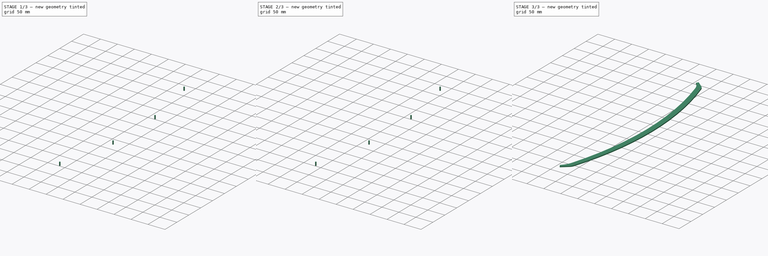
[diagram: build sequence overview — one tinted view per stage of 3, left to right]
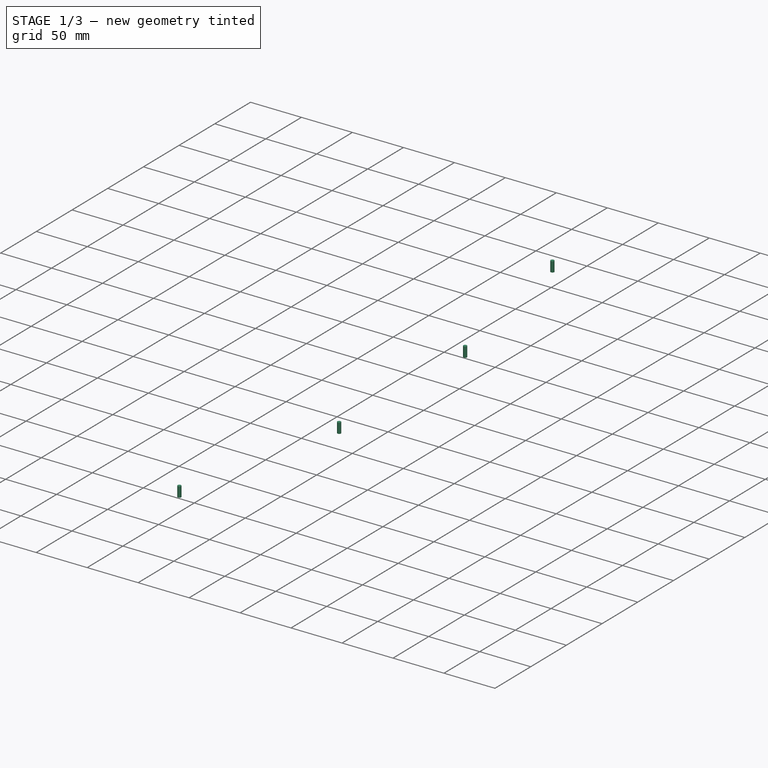
[diagram: stage 1 of 3 — iso view after this stage's code; geometry added in this stage tinted green]
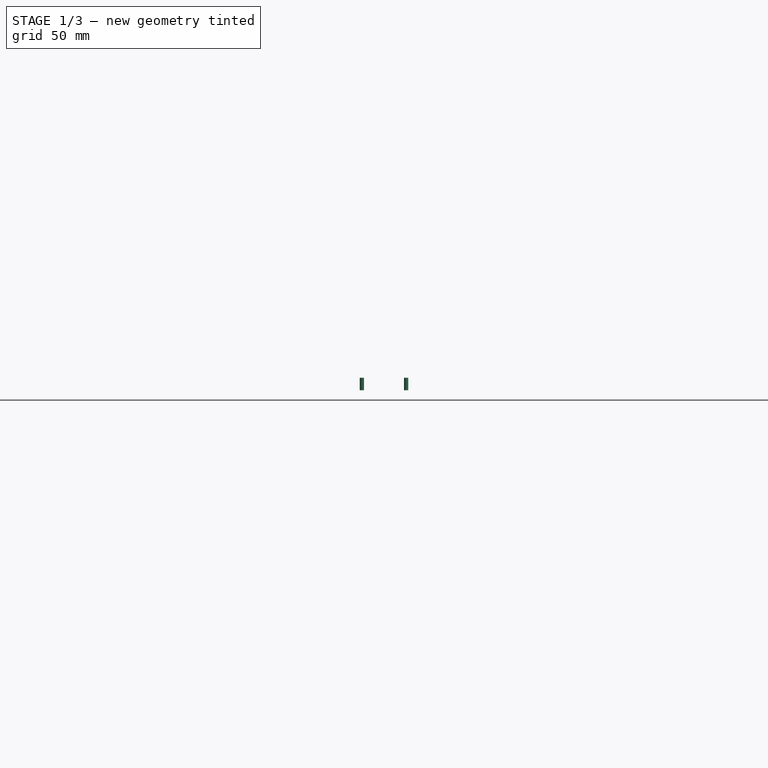
[diagram: stage 1 of 3 — front view after this stage's code; geometry added in this stage tinted green]
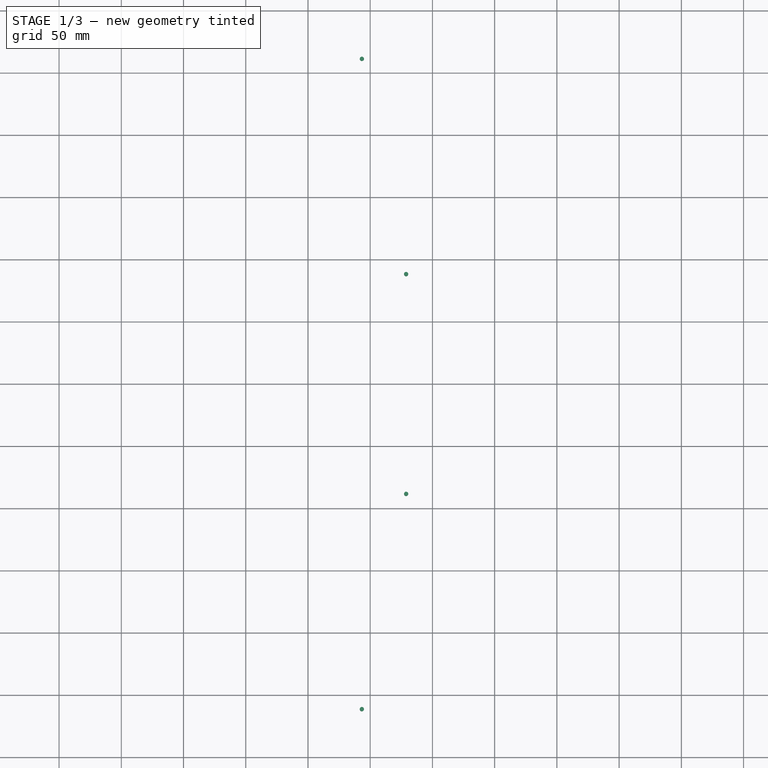
[diagram: stage 1 of 3 — top view after this stage's code; geometry added in this stage tinted green]
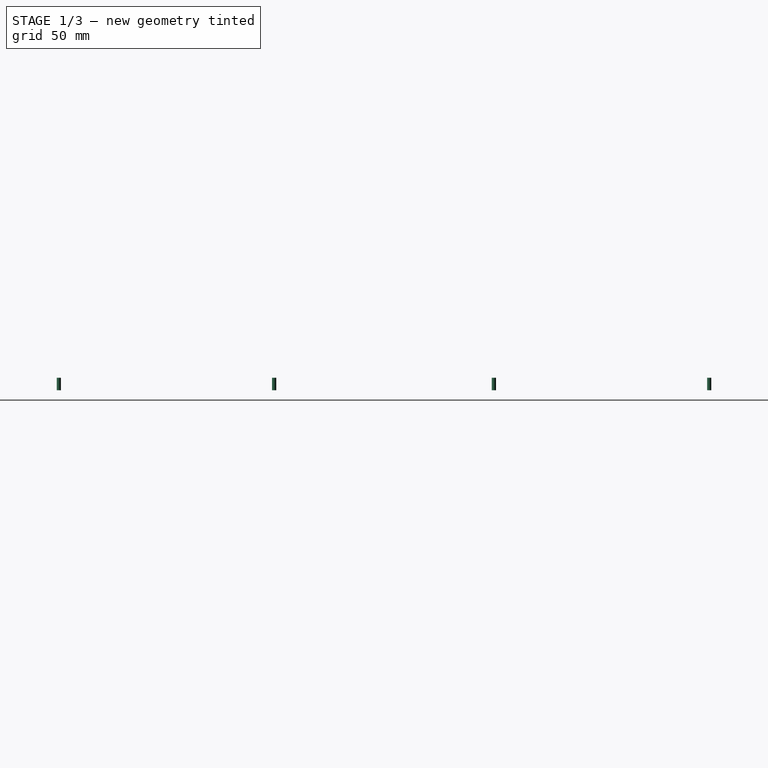
[diagram: stage 1 of 3 — right view after this stage's code; geometry added in this stage tinted green]
FCSTD DOCUMENT  (FreeCAD 1.1R38827 (Git))
Label: composit_stand3_sink_hand_model
License: All rights reserved
LicenseURL: http://en.wikipedia.org/wiki/All_rights_reserved
objects: Part::FeaturePython×4, PartDesign::SubShapeBinder×3, Sketcher::SketchObject×2, PartDesign::Body×2, Part::Feature×2, Part::Mirroring×1, PartDesign::Pad×1, Part::Cylinder×1, App::Link×1, Part::MultiFuse×1, PartDesign::Boolean×1, PartDesign::CoordinateSystem×1
note: 24 computed .brp shape members not serialized (recipe doc carries the construction recipe); baked Part::Feature solids carry a one-line shape summary decoded from their .brp
EXTERNAL_REF file=composit_stand3_sink_hand_main.FCStd obj=Sketch
EXTERNAL_REF file=composit_stand3_sink_hand_main.FCStd obj=Join

FEATURE [Part::Cylinder] Cylinder
  Angle = 360
  AttacherType = Attacher::AttachEngine3D
  FirstAngle = 0
  Height = 10
  Radius = 1.7
  SecondAngle = 0
FEATURE [PartDesign::Body] Body001
  AllowCompound = false
  Origin = -> Origin001
FEATURE [App::Link] Link001  label="sink_hand_holes"
  LinkedObject = -> <external composit_stand3_sink_hand_main.FCStd>#Join
FEATURE [Part::FeaturePython] Mirror  label="Mirror of sink_hand_holes"  # WARN: FeaturePython — macro-defined, semantics opaque (R4)
  ExposePlacement = false
  FlipX = false
  FlipY = true
  FlipZ = false
  MarkerShape = 1
  MarkerSize = 0
  NumElements = 4
  Object = -> Link001
  ObjectTraversal = 0
  Type = lattice2Mirror.LatticeMirror
  isLattice = 1
FEATURE [Part::FeaturePython] Join  # WARN: FeaturePython — macro-defined, semantics opaque (R4)
  ExposePlacement = false
  Interleave = false
  Links = -> [Link001,Mirror]
  MarkerShape = 1
  MarkerSize = 0
  NumElements = 8
  Type = lattice2JoinArrays.JoinArrays
  isLattice = 1
FEATURE [Part::FeaturePython] Populate  label="Populate Join with Cylinder"  # WARN: FeaturePython — macro-defined, semantics opaque (R4)
  Copying = 0
  ExposePlacement = false
  MarkerShape = 1
  MarkerSize = 0
  NumElements = 0
  Object = -> Cylinder
  OutputCompounding = 1
  PlacementsTo = -> Join
  Referencing = 0
  Type = lattice2PopulateCopies.LatticePopulateCopies
  isLattice = 0
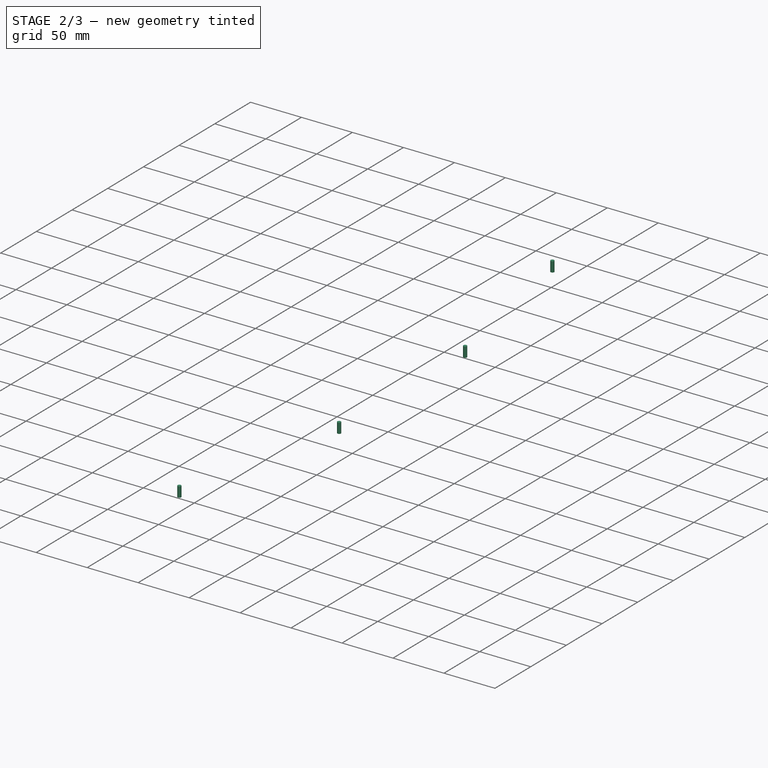
[diagram: stage 2 of 3 — iso view after this stage's code; geometry added in this stage tinted green]
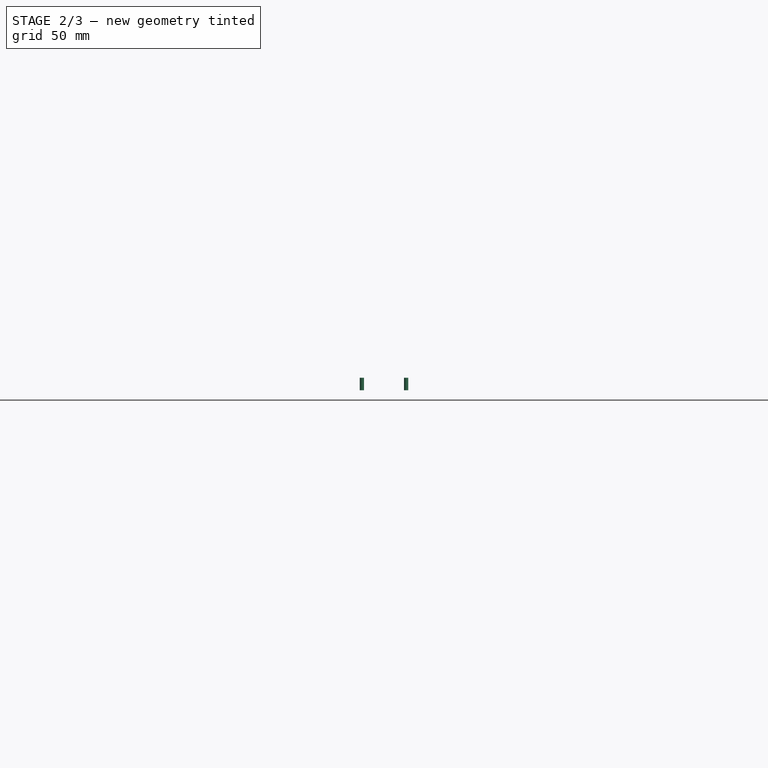
[diagram: stage 2 of 3 — front view after this stage's code; geometry added in this stage tinted green]
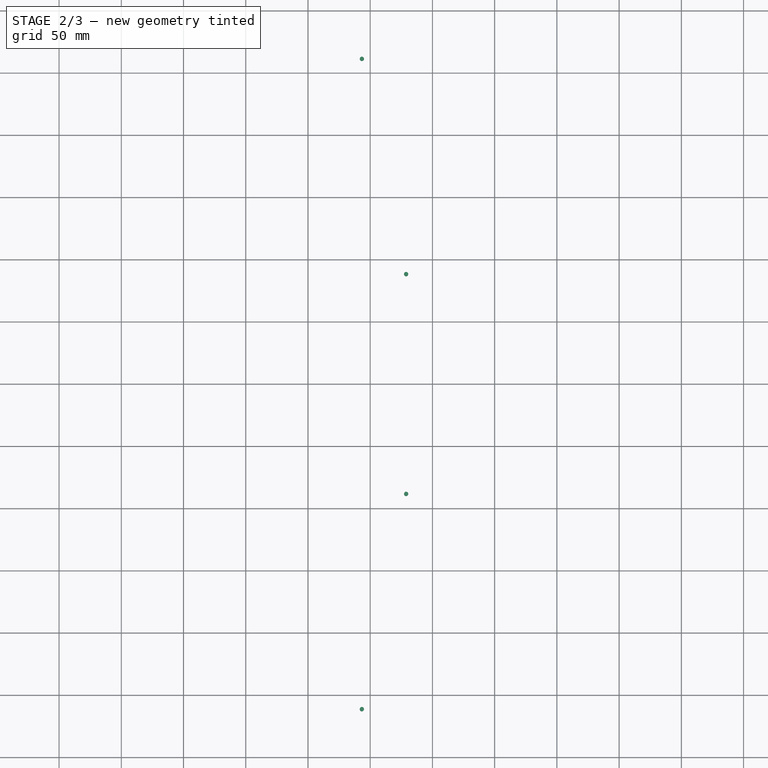
[diagram: stage 2 of 3 — top view after this stage's code; geometry added in this stage tinted green]
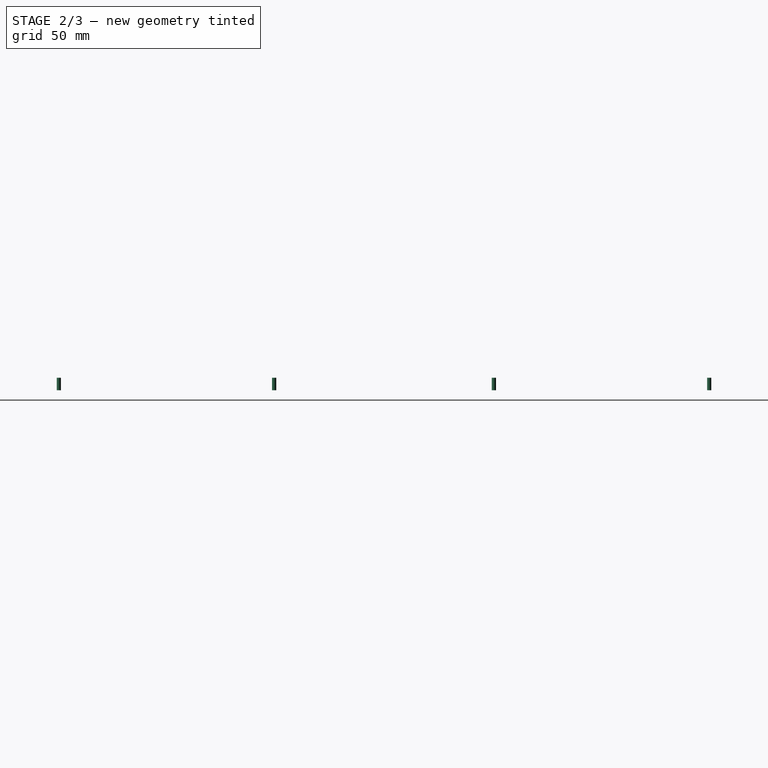
[diagram: stage 2 of 3 — right view after this stage's code; geometry added in this stage tinted green]
FEATURE [Part::MultiFuse] Fusion
  Shapes = -> [Populate]
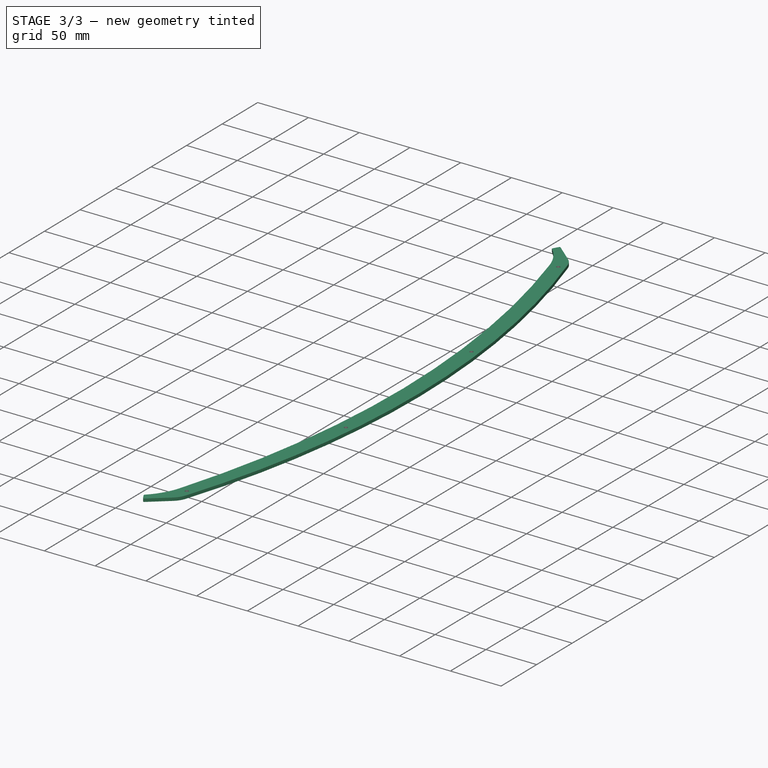
[diagram: stage 3 of 3 — iso view after this stage's code; geometry added in this stage tinted green]
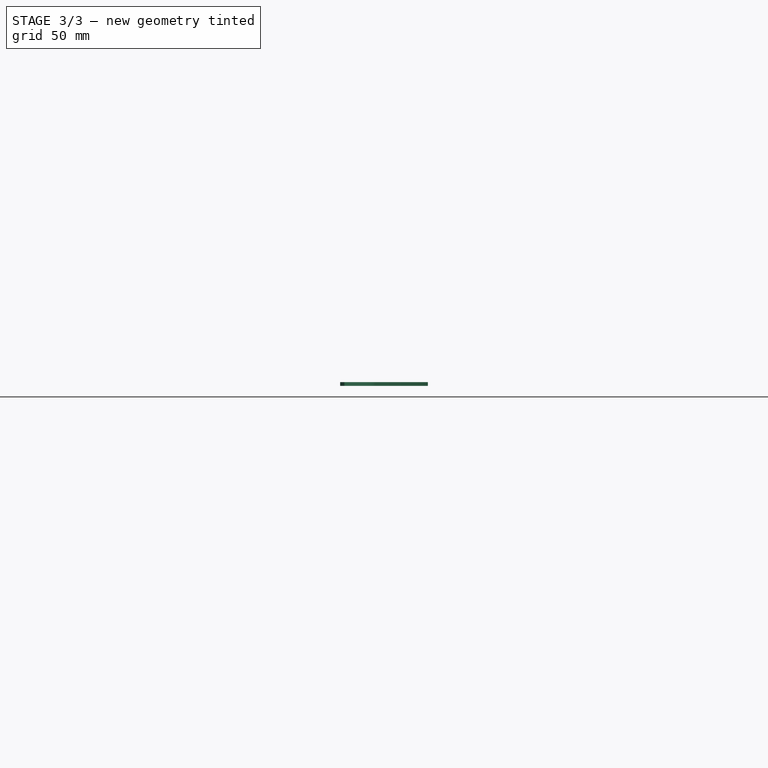
[diagram: stage 3 of 3 — front view after this stage's code; geometry added in this stage tinted green]
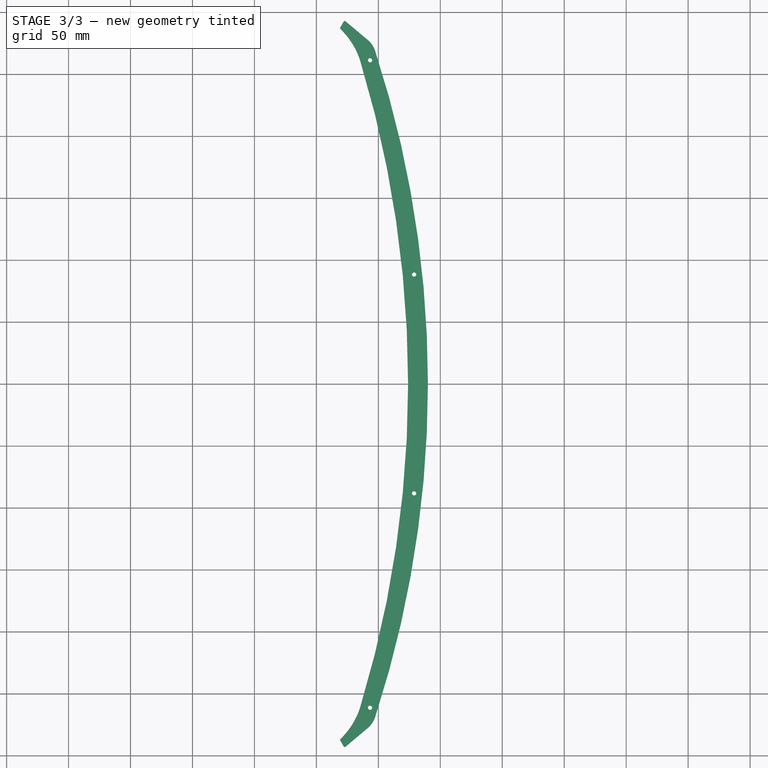
[diagram: stage 3 of 3 — top view after this stage's code; geometry added in this stage tinted green]
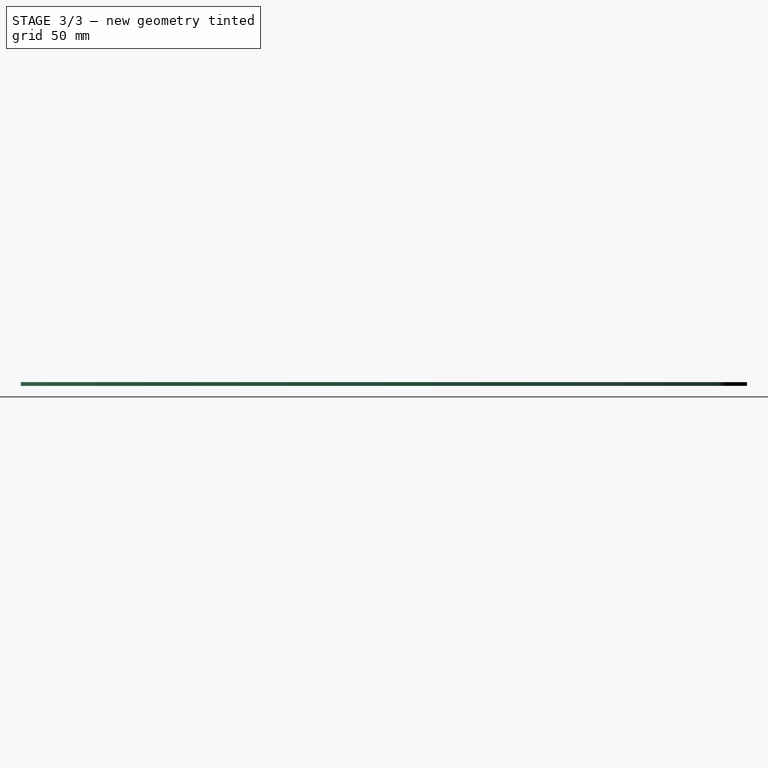
[diagram: stage 3 of 3 — right view after this stage's code; geometry added in this stage tinted green]
FEATURE [PartDesign::SubShapeBinder] Binder
  BindCopyOnChange = 0
  BindMode = 0
  ClaimChildren = true
  Fuse = false
  MakeFace = true
  OffsetFill = false
  OffsetIntersection = false
  OffsetJoinType = 0
  OffsetOpenResult = false
  PartialLoad = false
  Relative = false
  Support = -> [<external composit_stand3_sink_hand_main.FCStd>#Sketch]
  _Version = 2
FEATURE [PartDesign::SubShapeBinder] Binder001
  BindCopyOnChange = 0
  BindMode = 0
  ClaimChildren = false
  Fuse = false
  MakeFace = true
  OffsetFill = false
  OffsetIntersection = false
  OffsetJoinType = 0
  OffsetOpenResult = false
  PartialLoad = false
  Placement = pos=(-23,0,0) rot=(0,0,1;0rad)
  Relative = true
  Support = -> [Binder]
  _Version = 2
FEATURE [Sketcher::SketchObject] Sketch
  ArcFitTolerance = 0
  FullyConstrained = true
  MakeInternals = false
  sketch-geometry (10):
    g0: ArcOfCircle CenterX=-630 CenterY=0 CenterZ=0 NormalX=0 NormalY=0 NormalZ=1 AngleXU=0 Radius=870 StartAngle=0 EndAngle=0.314
    g1: ArcOfCircle CenterX=-675.304 CenterY=0 CenterZ=0 NormalX=0 NormalY=0 NormalZ=1 AngleXU=0 Radius=899.304 StartAngle=0 EndAngle=0.293638
    g2: ArcOfCircle CenterX=127.632 CenterY=242.791 CenterZ=0 NormalX=0 NormalY=0 NormalZ=1 AngleXU=0 Radius=60.4632 StartAngle=0.293638 EndAngle=0.807857
    g3: ArcOfCircle CenterX=170.106 CenterY=287.217 CenterZ=0 NormalX=0 NormalY=0 NormalZ=1 AngleXU=0 Radius=1 StartAngle=2.61799 EndAngle=3.94945
    g4: ArcOfCircle CenterX=172.865 CenterY=291.996 CenterZ=0 NormalX=0 NormalY=0 NormalZ=1 AngleXU=0 Radius=1 StartAngle=0.872665 EndAngle=2.61799
    g5: ArcOfCircle CenterX=178.537 CenterY=262.567 CenterZ=0 NormalX=0 NormalY=0 NormalZ=1 AngleXU=0 Radius=19.8978 StartAngle=0.314 EndAngle=0.872665
    g6: LineSegment StartX=173.508 StartY=292.762 StartZ=0 EndX=191.327 EndY=277.81 EndZ=0
    g7: LineSegment StartX=169.24 StartY=287.717 StartZ=0 EndX=171.999 EndY=292.496 EndZ=0
    g8: GeomPoint [constr] X=172.595 Y=293.528 Z=0
    g9: GeomPoint [constr] X=168.845 Y=287.033 Z=0
  constraints (28):
    c: PointOnObject(g0,g-1)
    c: PointOnObject(g1,g-1)
    c: DistanceX(g1) = 224
    c: PointOnObject(g0,g-1)
    c: DistanceX(g0) = 240
    c: Perpendicular(g1,g-1)
    c: Tangent(g0,g5) = -1.5708
    c: Tangent(g6,g5) = 1.5708
    c: Tangent(g2,g1) = -1.5708
    c: Tangent(g7,g3) = 1.5708
    c: Tangent(g3,g2) = 1.5708
    c: Tangent(g7,g4) = 1.5708
    c: Tangent(g6,g4) = 1.5708
    c: Equal(g3,g4)
    c: Radius(g3) = 1
    c: Angle(g7) = 1.0472
    c: Radius(g5) = 19.8978
    c: Angle(g6) = -0.698132
    c: PointOnObject(g8,g6)
    c: PointOnObject(g8,g7)
    c: Distance(g5,g8) = 24.4534
    c: PointOnObject(g9,g7)
    c: PointOnObject(g9,g2)
    c: Distance(g9,g8) = 7.5
    c: DistanceX(g2) = 127.632
    c: DistanceY(g2) = 242.791
    c: DistanceX(g5) = 178.537
    c: DistanceY(g5) = 262.567
FEATURE [Part::Mirroring] Part__Mirroring  label="Sketch (Mirror #1)"
  Base = (0,0,0)
  Normal = (0,1,0)
  Source = -> Sketch
FEATURE [Part::FeaturePython] Connect  # WARN: FeaturePython — macro-defined, semantics opaque (R4)
  Objects = -> [Sketch,Part__Mirroring]
  Tolerance = 0
FEATURE [PartDesign::SubShapeBinder] Binder002
  BindCopyOnChange = 0
  BindMode = 0
  ClaimChildren = true
  Context = -> Body [Binder002.]
  Fuse = false
  MakeFace = true
  OffsetFill = false
  OffsetIntersection = false
  OffsetJoinType = 0
  OffsetOpenResult = false
  PartialLoad = false
  Relative = false
  Support = -> [Connect]
  _Version = 2
FEATURE [PartDesign::Pad] Pad
  Direction = (0,0,1)
  Length = 3
  Length2 = 10
  Profile = -> Binder002
  Refine = true
  Suppressed = false
  Type = 0
FEATURE [PartDesign::Boolean] Boolean
  BaseFeature = -> Pad
  Group = -> [Fusion]
  Suppressed = false
  Type = 1
  UsePlacement = true
FEATURE [PartDesign::CoordinateSystem] Local_CS  label="base_LCS"
  AttacherType = Attacher::AttachEngine3D
  AttachmentSupport = -> [XY_Plane]
  MapMode = 5
FEATURE [PartDesign::Body] Body  label="sink_hand"
  AllowCompound = false
  Group = -> [Binder002,Pad,Boolean,Local_CS]
  Origin = -> Origin
  Tip = -> Boolean
FEATURE [Part::Feature] Body157
  Placement = pos=(0,0,0) rot=(0,0,-1;1.5708rad)
  shape: bbox 70.89 x 586 x 3 mm, 21 faces (baked)
FEATURE [Sketcher::SketchObject] Sketch001
  ArcFitTolerance = 0
  ExternalGeometry = -> [Body157]
  FullyConstrained = true
  MakeInternals = false
  sketch-geometry (2):
    g0: ArcOfCircle [constr] CenterX=-639.136 CenterY=0 CenterZ=0 NormalX=0 NormalY=0 NormalZ=1 AngleXU=0 Radius=872.481 StartAngle=0 EndAngle=0.304148
    g1: LineSegment [constr] StartX=-639.136 StartY=0 StartZ=0 EndX=193.3 EndY=261.291 EndZ=0
  constraints (9):
    c: PointOnObject(g0,g-1)
    c: PointOnObject(g0,g-1)
    c: Coincident(g0,g-4)
    c: PointOnObject(g-3,g0)
    c: DistanceX(g0) = -639.136
    c: DistanceX(g0,g0) = 872.481
    c: Coincident(g1,g0)
    c: Coincident(g1,g0)
    c: Angle(g1) = 0.304148
FEATURE [Part::Feature] Sketch002
  shape: bbox 70.89 x 293 x 2e-07 mm, 0 faces, 0 solids (baked)
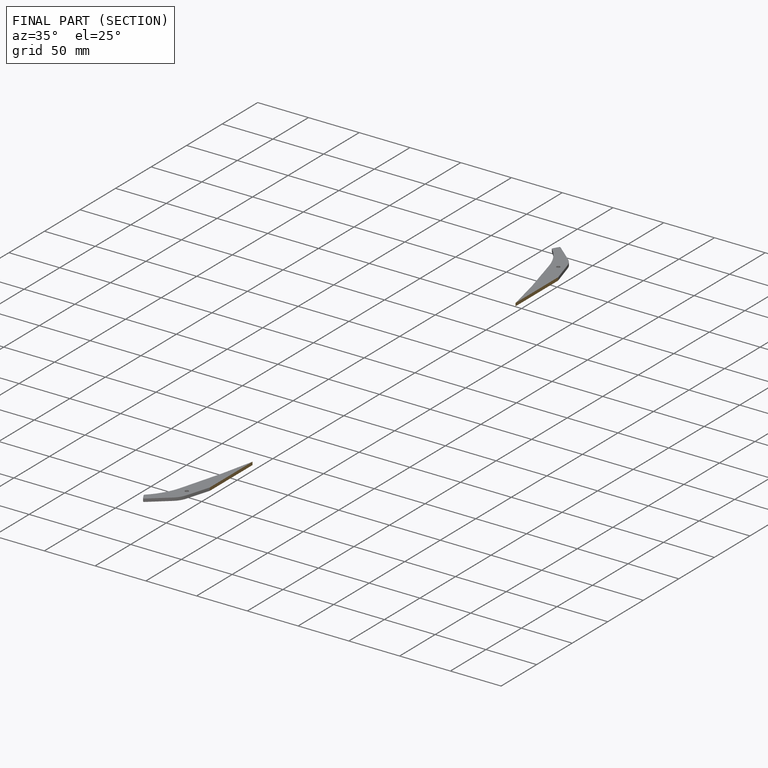
[diagram: finished part — half-section view (interior)]
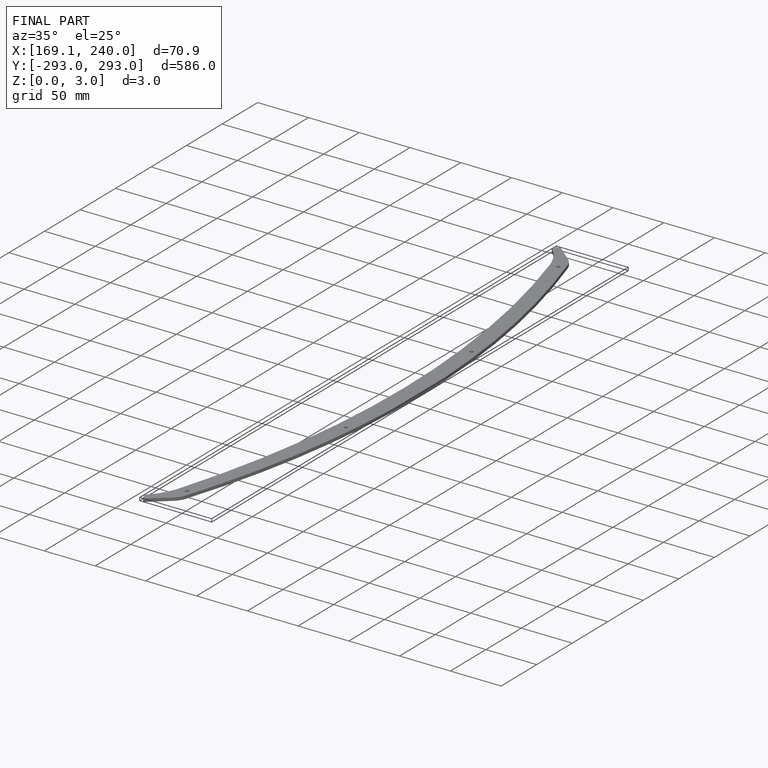
[diagram: finished part — iso view with bounding-box wireframe]
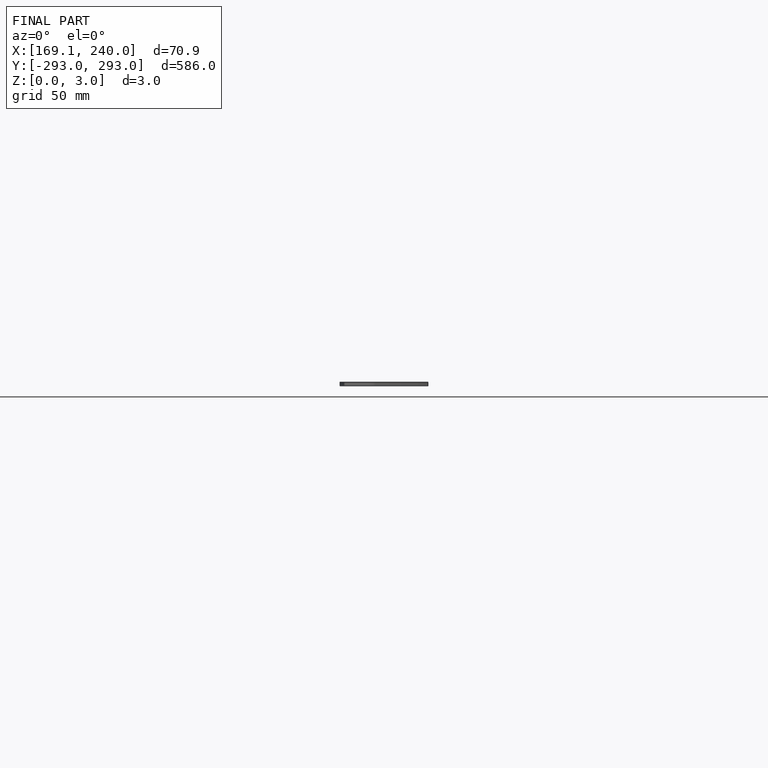
[diagram: finished part — front view with bounding-box wireframe]
